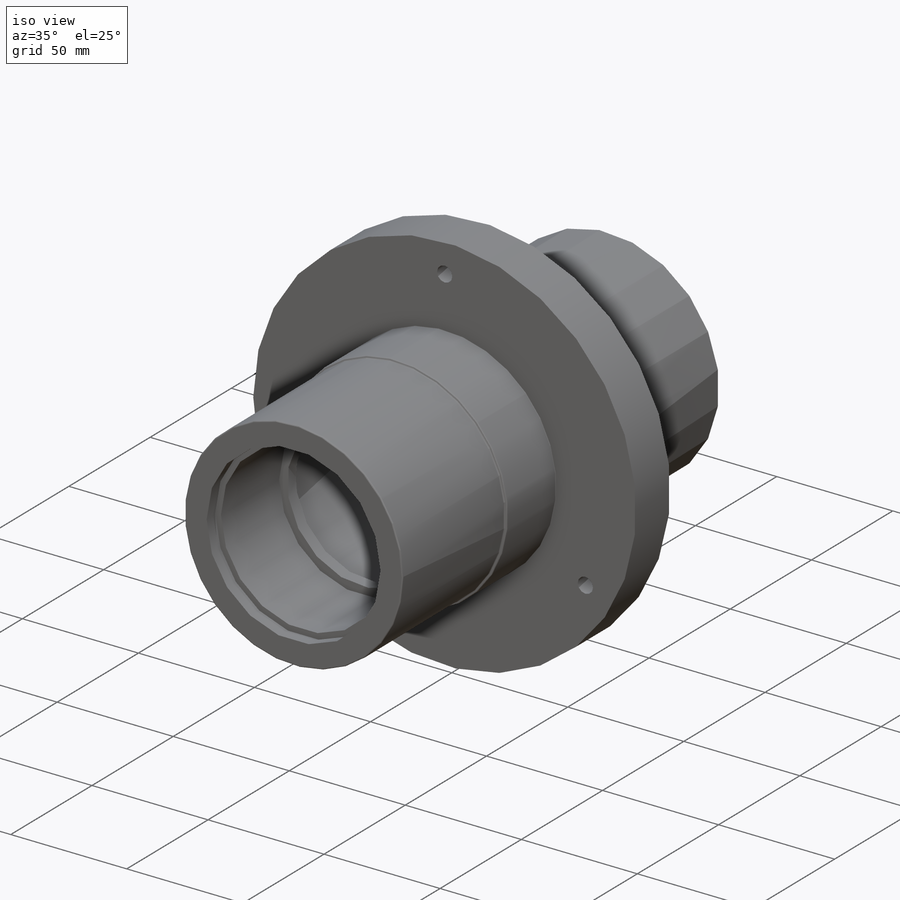
[diagram: iso view]
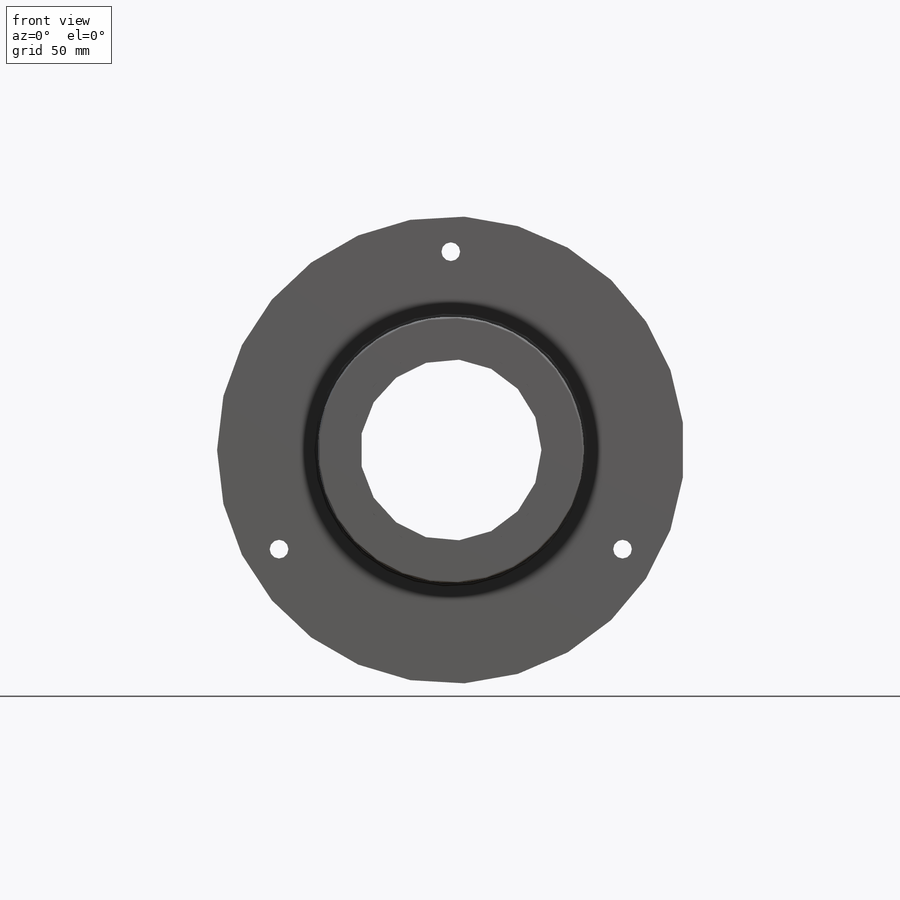
[diagram: front view]
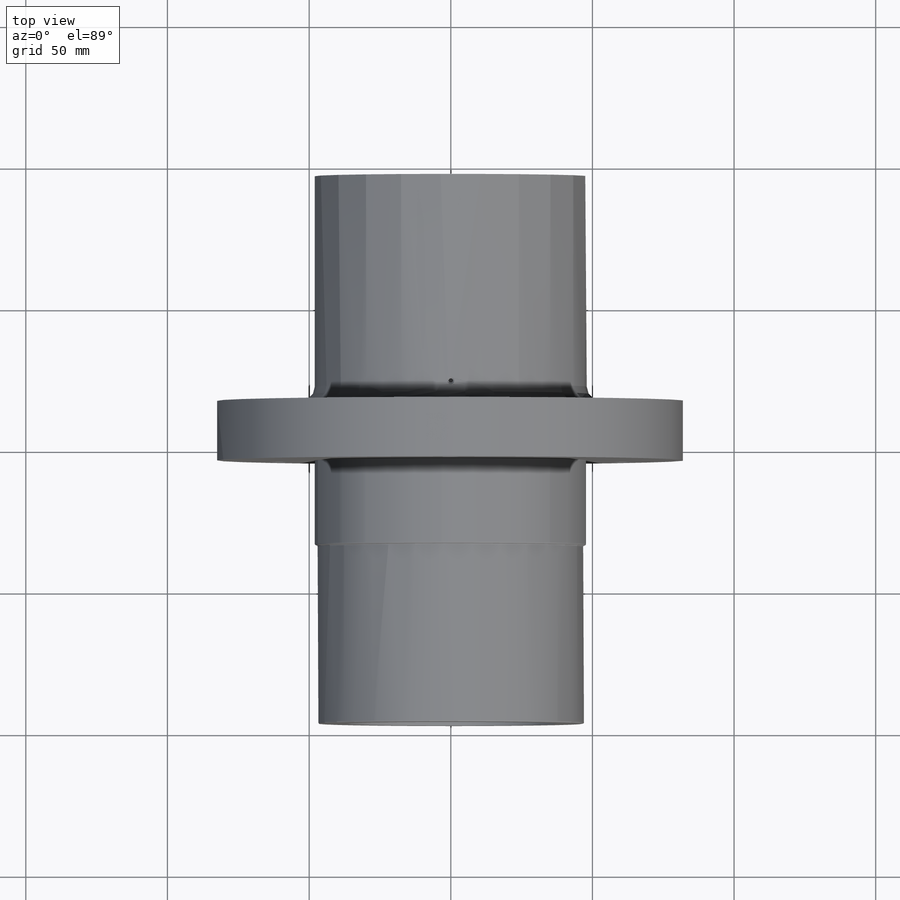
[diagram: top view]
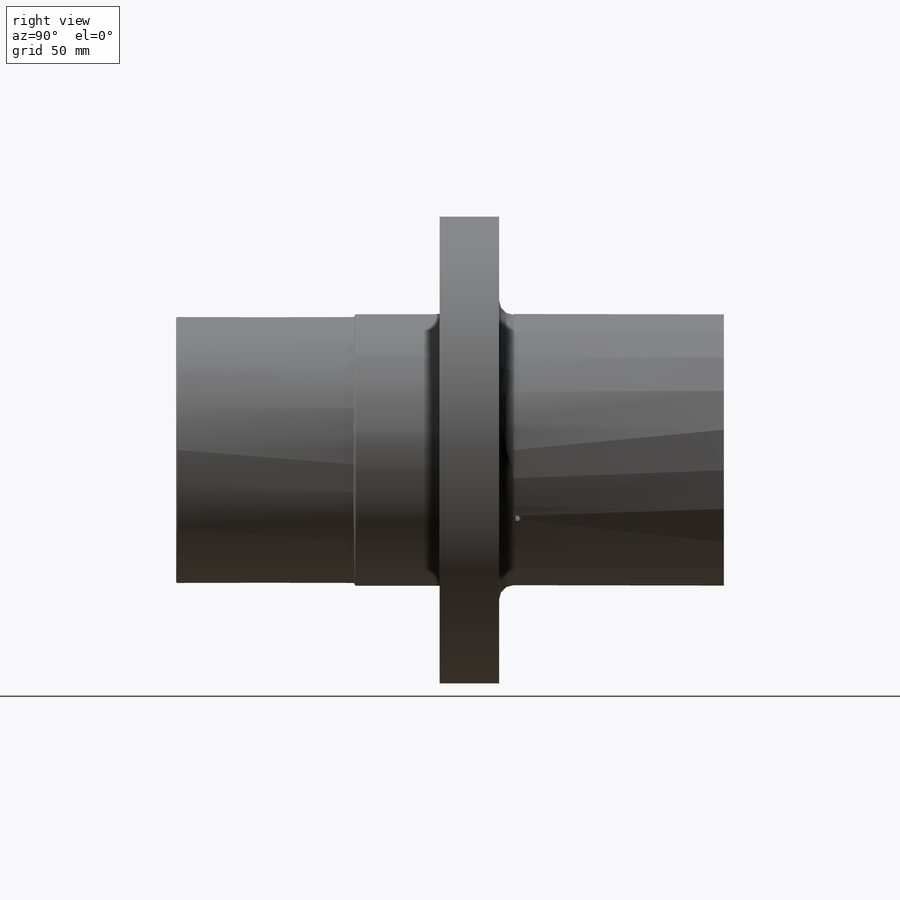
[diagram: right view]
SOLIDWORKS PART (.sldprt)
format: sldprt  version: not decoded by parser v0  size: 530,944 bytes
history: native  units: mm
features: sketch x17, cut_extrude x10, cut_revolve x4, plane x3, fillet x3, thread x2, pattern_circular x2, material x1, extrude x1, hole x1 + 2 further entries (+8 scaffold rows collapsed)
feature tree (54):
  scaffold x8  (default folders/planes/origin — collapsed)
  material  "材料 <未指定>"
  "ｻｰﾌｪｽ ﾎﾞﾃﾞｨ（複数）"
  "ｿﾘｯﾄﾞ ﾎﾞﾃﾞｨ"
  plane  "正面"
  plane  "平面"
  plane  "右側面"
  sketch  "ｽｹｯﾁ1"  dims[D1=73.0mm]
  extrude  "押し出し1"  Depth=197.31mm
  sketch  "ｽｹｯﾁ2"  dims[D1=27.5mm]
  cut_extrude  "ｶｯﾄ - 押し出し1"  [1 undecoded]
  sketch  "ｽｹｯﾁ3"  dims[D1=33.0mm]
  cut_extrude  "ｶｯﾄ - 押し出し2"  Depth=41.77mm
  sketch  "ｽｹｯﾁ4"  dims[D1=36.96mm]
  cut_extrude  "ｶｯﾄ - 押し出し3"  [1 undecoded]
  thread  "ねじ山1"  Diameter=4mm  [1 undecoded]
  sketch  "ｽｹｯﾁ6"  dims[D1=~32.417185mm]
  cut_extrude  "ｶｯﾄ - 押し出し4"  Depth=150.31mm
  sketch  "ｽｹｯﾁ7"  dims[D1=~42.913164mm]
  cut_extrude  "ｶｯﾄ - 押し出し5"  Depth=78.02mm
  sketch  "ｽｹｯﾁ8"  dims[D1=39.5mm]
  cut_extrude  "ｶｯﾄ - 押し出し6"  Depth=76.01mm
  sketch  "ｽｹｯﾁ9"  dims[D1=40.96mm]
  cut_extrude  "ｶｯﾄ - 押し出し7"  [1 undecoded]
  thread  "ねじ山2"  Diameter=4mm  [1 undecoded]
  sketch  "ｽｹｯﾁ12"  dims[D1=83.31mm]
  cut_revolve  "ｶｯﾄ - 回転1"  Angle=360deg
  sketch  "ｽｹｯﾁ13"
  cut_extrude  "ｶｯﾄ - 押し出し8"  Depth=4mm
  fillet  "ﾌｨﾚｯﾄ1"  Radius=5mm
  sketch  "ｽｹｯﾁ15"  dims[D1=~2.850826mm]
  cut_extrude  "ｶｯﾄ - 押し出し9"  [1 undecoded]
  sketch  "ｽｹｯﾁ16"  dims[D1=~5.762902mm]
  cut_extrude  "ｶｯﾄ - 押し出し10"  Depth=10mm
  pattern_circular  "円形ﾊﾟﾀｰﾝ1"  Count=3 Angle=120deg
  sketch  "ｽｹｯﾁ17"
  cut_revolve  "ｶｯﾄ - 回転2"  Angle=360deg
  sketch  "ｽｹｯﾁ18"  dims[D1=~4.005522mm]
  cut_revolve  "ｶｯﾄ - 回転3"  Angle=360deg
  hole  "M2x0.4 ねじ穴3"  [1 undecoded]
  sketch  "3Dｽｹｯﾁ3"
  sketch  "ｽｹｯﾁ25"  dims[hole-wizard template sketch: 39 standard entries collapsed; hole parameters kept: c13.ねじ下穴ﾄﾞﾘﾙの直径=1.6mm c13.ねじ下穴ﾄﾞﾘﾙの深さ=12.0mm c13.表面の皿穴の直径=2.5mm c13.D4=~33.297463mm c13.表面の皿穴の角度=90.0deg c14.D5=~14.816244mm c14.ﾄﾞﾘﾙ角度=118.0deg]
  pattern_circular  "円形ﾊﾟﾀｰﾝ2"  Count=3 Angle=360deg
  fillet  "ﾌｨﾚｯﾄ2"  Radius=0.2mm
  sketch  "ｽｹｯﾁ26"  dims[D1=1.0mm]
  cut_revolve  "ｶｯﾄ - 回転4"  Angle=360deg
  fillet  "ﾌｨﾚｯﾄ3"  Radius=0.5mm
decode coverage: 32 of 40 modeling features carry decoded parameters; 2 rows unclassified (native names shown)
note: ~ marks probable driven/reference dimensions
note: 7 parameter values undecoded
summary: no parameter record found for 5 features
note: suppression state not decoded; provenance and decode notes live in map.json
